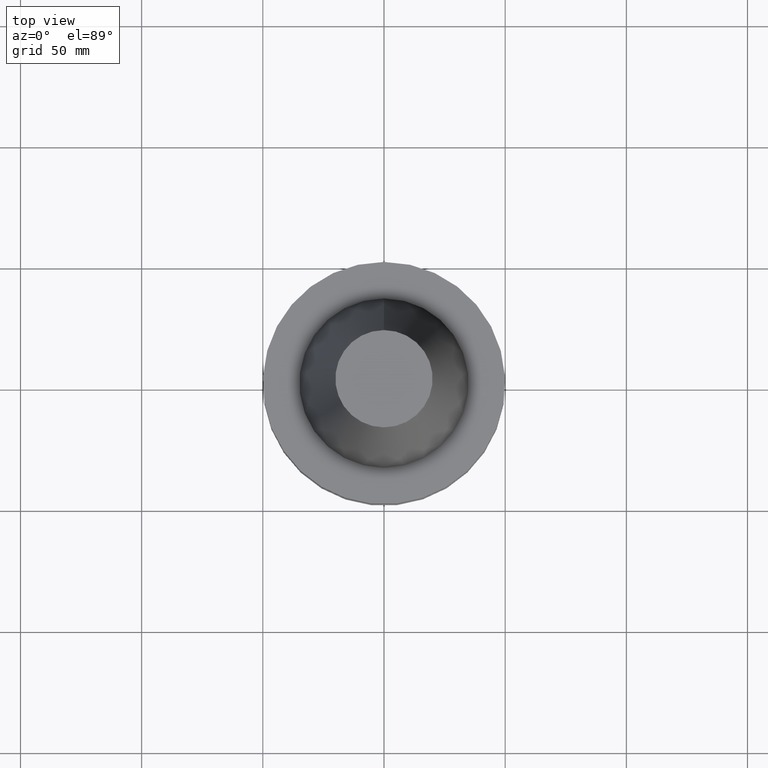
[diagram: clean part render]
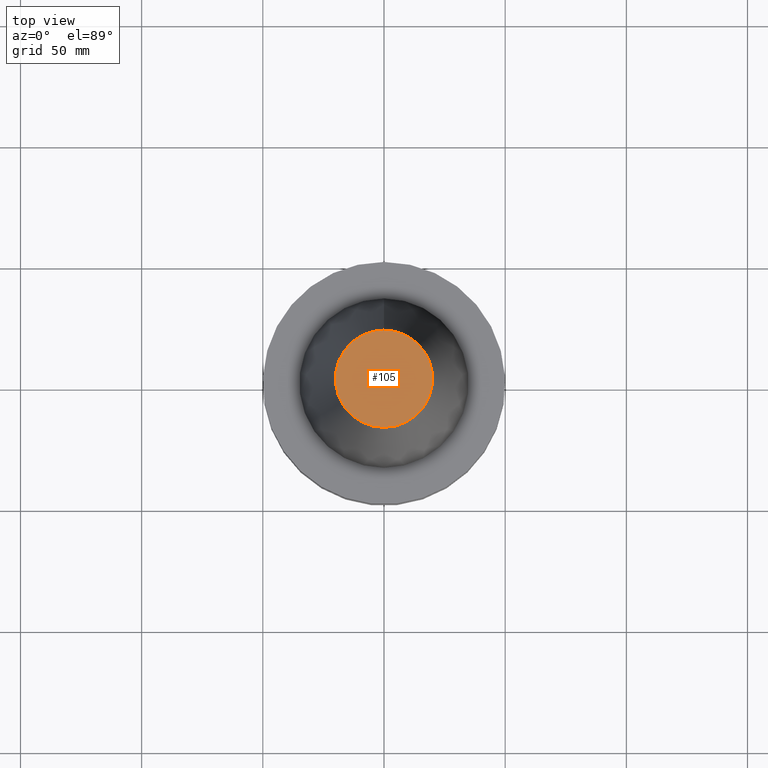
[diagram: same view with one face highlighted and labeled with its STEP entity id]
A machine part, top view. The second image highlights one B-rep face of the part: STEP entity #105.
In plain terms, the highlighted planar face has unit normal (-0, -0, 1).
Its self-contained STEP definition (entity closure, byte-faithful):
#105=ADVANCED_FACE('Unnamed[1]',(#248),#249,.T.);
#139=EDGE_CURVE('Unnamed[1]',#300,#300,#301,.T.);
#248=FACE_OUTER_BOUND('',#435,.T.);
#249=PLANE('',#436);
#300=VERTEX_POINT('',#501);
#301=CIRCLE('',#502,20.0791666651884);
#435=EDGE_LOOP('',(#634));
#436=AXIS2_PLACEMENT_3D('',#635,#636,#637);
#501=CARTESIAN_POINT('',(-6.23345220766003E-015,20.0791666651884,101.8));
#502=AXIS2_PLACEMENT_3D('',#693,#694,#695);
#634=ORIENTED_EDGE('',*,*,#139,.T.);
#635=CARTESIAN_POINT('',(-6.23345220766003E-015,10.0395833325942,101.8));
#636=DIRECTION('',(-6.12323399573677E-017,-1.22464679914735E-016,1.0));
#637=DIRECTION('',(-1.23259516440783E-032,1.0,1.22464679914735E-016));
#693=CARTESIAN_POINT('',(-6.23345220766003E-015,1.30378574894418E-014,101.8));
#694=DIRECTION('',(-6.12323399573677E-017,-2.72265846766713E-017,1.0));
#695=DIRECTION('',(-6.49430021956955E-033,1.0,2.72265846766713E-017));